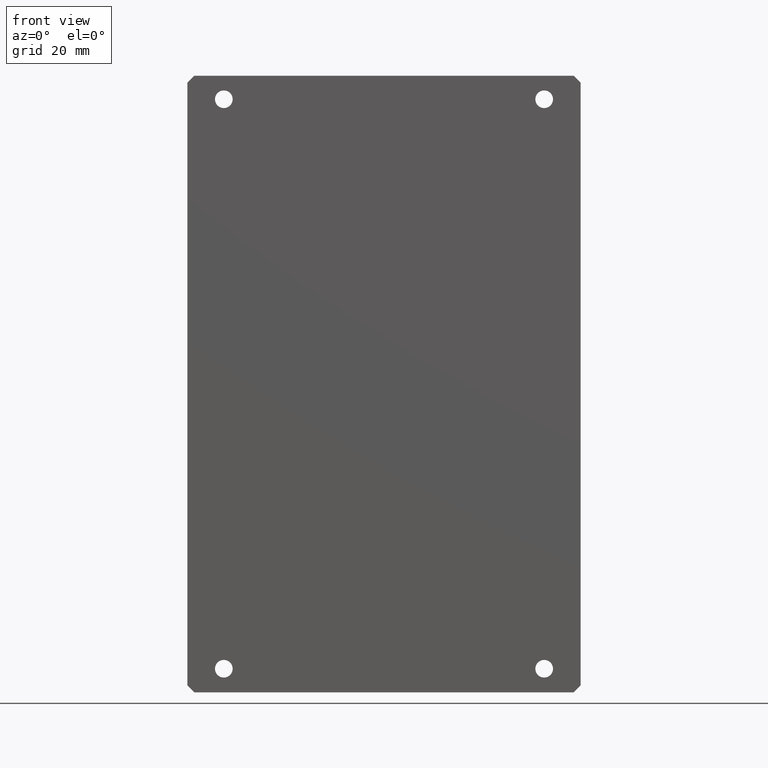
[diagram: clean part render]
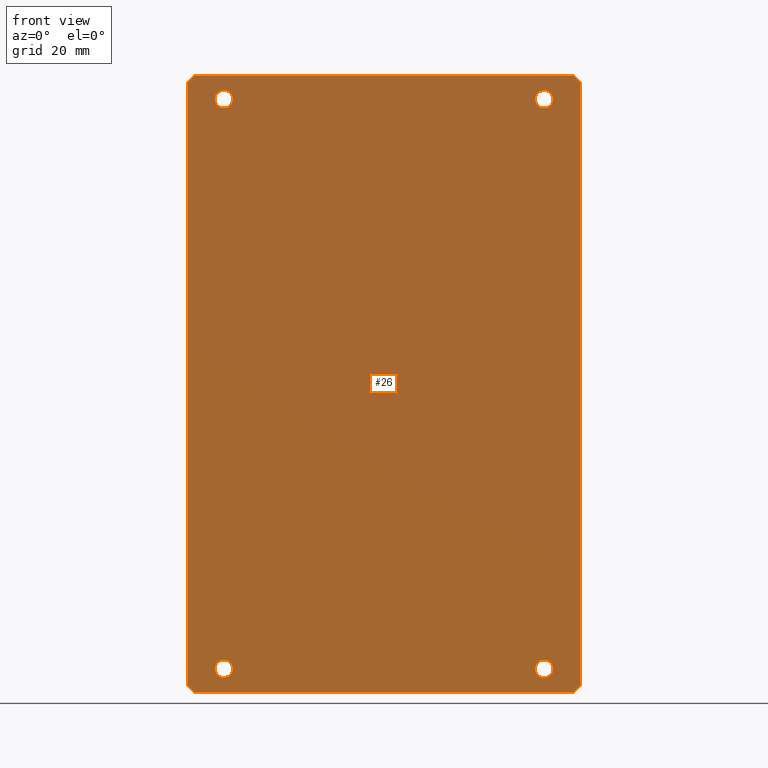
[diagram: same view with one face highlighted and labeled with its STEP entity id]
A machine part, front view. The second image highlights one B-rep face of the part: STEP entity #26.
In plain terms, the highlighted planar face has unit normal (0, -1, 0).
Its self-contained STEP definition (entity closure, byte-faithful):
#1 = VERTEX_POINT ( 'NONE', #275 ) ;
#3 = EDGE_CURVE ( 'NONE', #1, #5, #336, .T. ) ;
#5 = VERTEX_POINT ( 'NONE', #331 ) ;
#7 = VERTEX_POINT ( 'NONE', #326 ) ;
#8 = VERTEX_POINT ( 'NONE', #325 ) ;
#9 = ORIENTED_EDGE ( 'NONE', *, *, #27, .F. ) ;
#10 = VERTEX_POINT ( 'NONE', #324 ) ;
#26 = ADVANCED_FACE ( 'NONE', ( #130, #129, #128, #127, #126 ), #125, .T. ) ;
#27 = EDGE_CURVE ( 'NONE', #7, #10, #120, .T. ) ;
#28 = ORIENTED_EDGE ( 'NONE', *, *, #29, .F. ) ;
#29 = EDGE_CURVE ( 'NONE', #30, #7, #116, .T. ) ;
#30 = VERTEX_POINT ( 'NONE', #112 ) ;
#31 = VERTEX_POINT ( 'NONE', #111 ) ;
#45 = VERTEX_POINT ( 'NONE', #73 ) ;
#47 = EDGE_CURVE ( 'NONE', #48, #45, #72, .T. ) ;
#48 = VERTEX_POINT ( 'NONE', #67 ) ;
#57 = VERTEX_POINT ( 'NONE', #462 ) ;
#59 = EDGE_CURVE ( 'NONE', #60, #57, #461, .T. ) ;
#60 = VERTEX_POINT ( 'NONE', #362 ) ;
#67 = CARTESIAN_POINT ( 'NONE',  ( 45.20000000000001000, 0.0000000000000000000, 77.84999999999959600 ) ) ;
#68 = DIRECTION ( 'NONE',  ( 0.0000000000000000000, 0.0000000000000000000, 1.000000000000000000 ) ) ;
#69 = DIRECTION ( 'NONE',  ( 0.0000000000000000000, 1.000000000000000000, 0.0000000000000000000 ) ) ;
#70 = CARTESIAN_POINT ( 'NONE',  ( 45.20000000000001000, 0.0000000000000000000, 80.34999999999961100 ) ) ;
#71 = AXIS2_PLACEMENT_3D ( 'NONE', #70, #69, #68 ) ;
#72 = CIRCLE ( 'NONE', #71, 2.500000000000016000 ) ;
#73 = CARTESIAN_POINT ( 'NONE',  ( 45.20000000000001000, 0.0000000000000000000, 82.84999999999963900 ) ) ;
#111 = CARTESIAN_POINT ( 'NONE',  ( 55.50000000000000000, 0.0000000000000000000, 84.99999999999963100 ) ) ;
#112 = CARTESIAN_POINT ( 'NONE',  ( 55.49999999999940300, 0.0000000000000000000, -85.00000000000038400 ) ) ;
#113 = DIRECTION ( 'NONE',  ( -0.7071067811865549000, 0.0000000000000000000, -0.7071067811865401300 ) ) ;
#114 = VECTOR ( 'NONE', #113, 1000.000000000000000 ) ;
#115 = CARTESIAN_POINT ( 'NONE',  ( 55.49999999999940300, 0.0000000000000000000, -85.00000000000038400 ) ) ;
#116 = LINE ( 'NONE', #115, #114 ) ;
#117 = DIRECTION ( 'NONE',  ( -1.000000000000000000, 0.0000000000000000000, 3.372172738347457500E-015 ) ) ;
#118 = VECTOR ( 'NONE', #117, 1000.000000000000000 ) ;
#119 = CARTESIAN_POINT ( 'NONE',  ( 53.49999999999938900, 0.0000000000000000000, -87.00000000000035500 ) ) ;
#120 = LINE ( 'NONE', #119, #118 ) ;
#121 = DIRECTION ( 'NONE',  ( 0.0000000000000000000, -0.0000000000000000000, -1.000000000000000000 ) ) ;
#122 = DIRECTION ( 'NONE',  ( 0.0000000000000000000, -1.000000000000000000, 0.0000000000000000000 ) ) ;
#123 = CARTESIAN_POINT ( 'NONE',  ( -140.5000000000003100, 0.0000000000000000000, 8.743006318923107800E-013 ) ) ;
#124 = AXIS2_PLACEMENT_3D ( 'NONE', #123, #122, #121 ) ;
#125 = PLANE ( 'NONE',  #124 ) ;
#126 = FACE_BOUND ( 'NONE', #201, .T. ) ;
#127 = FACE_BOUND ( 'NONE', #166, .T. ) ;
#128 = FACE_OUTER_BOUND ( 'NONE', #163, .T. ) ;
#129 = FACE_BOUND ( 'NONE', #159, .T. ) ;
#130 = FACE_BOUND ( 'NONE', #155, .T. ) ;
#155 = EDGE_LOOP ( 'NONE', ( #156, #157 ) ) ;
#156 = ORIENTED_EDGE ( 'NONE', *, *, #47, .T. ) ;
#157 = ORIENTED_EDGE ( 'NONE', *, *, #158, .T. ) ;
#158 = EDGE_CURVE ( 'NONE', #45, #48, #350, .T. ) ;
#159 = EDGE_LOOP ( 'NONE', ( #160, #161 ) ) ;
#160 = ORIENTED_EDGE ( 'NONE', *, *, #3, .T. ) ;
#161 = ORIENTED_EDGE ( 'NONE', *, *, #162, .T. ) ;
#162 = EDGE_CURVE ( 'NONE', #5, #1, #345, .T. ) ;
#163 = EDGE_LOOP ( 'NONE', ( #164, #9, #28, #224, #226, #229, #232, #235 ) ) ;
#164 = ORIENTED_EDGE ( 'NONE', *, *, #165, .F. ) ;
#165 = EDGE_CURVE ( 'NONE', #10, #8, #487, .T. ) ;
#166 = EDGE_LOOP ( 'NONE', ( #198, #199 ) ) ;
#169 = VERTEX_POINT ( 'NONE', #479 ) ;
#171 = EDGE_CURVE ( 'NONE', #172, #169, #478, .T. ) ;
#172 = VERTEX_POINT ( 'NONE', #473 ) ;
#198 = ORIENTED_EDGE ( 'NONE', *, *, #171, .T. ) ;
#199 = ORIENTED_EDGE ( 'NONE', *, *, #200, .T. ) ;
#200 = EDGE_CURVE ( 'NONE', #169, #172, #383, .T. ) ;
#201 = EDGE_LOOP ( 'NONE', ( #202, #203 ) ) ;
#202 = ORIENTED_EDGE ( 'NONE', *, *, #59, .T. ) ;
#203 = ORIENTED_EDGE ( 'NONE', *, *, #204, .T. ) ;
#204 = EDGE_CURVE ( 'NONE', #57, #60, #378, .T. ) ;
#224 = ORIENTED_EDGE ( 'NONE', *, *, #225, .F. ) ;
#225 = EDGE_CURVE ( 'NONE', #31, #30, #401, .T. ) ;
#226 = ORIENTED_EDGE ( 'NONE', *, *, #227, .F. ) ;
#227 = EDGE_CURVE ( 'NONE', #228, #31, #397, .T. ) ;
#228 = VERTEX_POINT ( 'NONE', #583 ) ;
#229 = ORIENTED_EDGE ( 'NONE', *, *, #230, .F. ) ;
#230 = EDGE_CURVE ( 'NONE', #231, #228, #582, .T. ) ;
#231 = VERTEX_POINT ( 'NONE', #578 ) ;
#232 = ORIENTED_EDGE ( 'NONE', *, *, #233, .F. ) ;
#233 = EDGE_CURVE ( 'NONE', #234, #231, #577, .T. ) ;
#234 = VERTEX_POINT ( 'NONE', #573 ) ;
#235 = ORIENTED_EDGE ( 'NONE', *, *, #236, .F. ) ;
#236 = EDGE_CURVE ( 'NONE', #8, #234, #572, .T. ) ;
#275 = CARTESIAN_POINT ( 'NONE',  ( -45.20000000000000300, 0.0000000000000000000, -82.84999999999998000 ) ) ;
#324 = CARTESIAN_POINT ( 'NONE',  ( -53.50000000000000000, 0.0000000000000000000, -87.00000000000000000 ) ) ;
#325 = CARTESIAN_POINT ( 'NONE',  ( -55.50000000000000000, 0.0000000000000000000, -84.99999999999997200 ) ) ;
#326 = CARTESIAN_POINT ( 'NONE',  ( 53.49999999999938900, 0.0000000000000000000, -87.00000000000035500 ) ) ;
#331 = CARTESIAN_POINT ( 'NONE',  ( -45.20000000000000300, 0.0000000000000000000, -77.84999999999998000 ) ) ;
#332 = DIRECTION ( 'NONE',  ( 0.0000000000000000000, 0.0000000000000000000, 1.000000000000000000 ) ) ;
#333 = DIRECTION ( 'NONE',  ( 0.0000000000000000000, 1.000000000000000000, 0.0000000000000000000 ) ) ;
#334 = CARTESIAN_POINT ( 'NONE',  ( -45.20000000000000300, 0.0000000000000000000, -80.34999999999998000 ) ) ;
#335 = AXIS2_PLACEMENT_3D ( 'NONE', #334, #333, #332 ) ;
#336 = CIRCLE ( 'NONE', #335, 2.500000000000002200 ) ;
#344 = CARTESIAN_POINT ( 'NONE',  ( -45.20000000000000300, 0.0000000000000000000, -80.34999999999998000 ) ) ;
#345 = CIRCLE ( 'NONE', #490, 2.500000000000002200 ) ;
#346 = DIRECTION ( 'NONE',  ( 0.0000000000000000000, 0.0000000000000000000, 1.000000000000000000 ) ) ;
#347 = DIRECTION ( 'NONE',  ( 0.0000000000000000000, 1.000000000000000000, 0.0000000000000000000 ) ) ;
#348 = CARTESIAN_POINT ( 'NONE',  ( 45.20000000000001000, 0.0000000000000000000, 80.34999999999961100 ) ) ;
#349 = AXIS2_PLACEMENT_3D ( 'NONE', #348, #347, #346 ) ;
#350 = CIRCLE ( 'NONE', #349, 2.500000000000016000 ) ;
#362 = CARTESIAN_POINT ( 'NONE',  ( -45.19999999999944900, 0.0000000000000000000, 77.84999999999992300 ) ) ;
#363 = DIRECTION ( 'NONE',  ( 0.0000000000000000000, 0.0000000000000000000, -1.000000000000000000 ) ) ;
#374 = DIRECTION ( 'NONE',  ( 0.0000000000000000000, 0.0000000000000000000, -1.000000000000000000 ) ) ;
#375 = DIRECTION ( 'NONE',  ( -0.0000000000000000000, 1.000000000000000000, -0.0000000000000000000 ) ) ;
#376 = CARTESIAN_POINT ( 'NONE',  ( -45.19999999999944900, 0.0000000000000000000, 80.34999999999992300 ) ) ;
#377 = AXIS2_PLACEMENT_3D ( 'NONE', #376, #375, #374 ) ;
#378 = CIRCLE ( 'NONE', #377, 2.500000000000002200 ) ;
#379 = DIRECTION ( 'NONE',  ( 0.0000000000000000000, 0.0000000000000000000, -1.000000000000000000 ) ) ;
#380 = DIRECTION ( 'NONE',  ( -0.0000000000000000000, 1.000000000000000000, -0.0000000000000000000 ) ) ;
#381 = CARTESIAN_POINT ( 'NONE',  ( 45.19999999999944900, 0.0000000000000000000, -80.35000000000027900 ) ) ;
#382 = AXIS2_PLACEMENT_3D ( 'NONE', #381, #380, #379 ) ;
#383 = CIRCLE ( 'NONE', #382, 2.500000000000016000 ) ;
#394 = DIRECTION ( 'NONE',  ( 0.7071067811865474600, -0.0000000000000000000, -0.7071067811865474600 ) ) ;
#395 = VECTOR ( 'NONE', #394, 1000.000000000000100 ) ;
#396 = CARTESIAN_POINT ( 'NONE',  ( 55.50000000000000000, 0.0000000000000000000, 84.99999999999963100 ) ) ;
#397 = LINE ( 'NONE', #396, #395 ) ;
#398 = DIRECTION ( 'NONE',  ( -3.510263974917773900E-015, 0.0000000000000000000, -1.000000000000000000 ) ) ;
#399 = VECTOR ( 'NONE', #398, 1000.000000000000000 ) ;
#400 = CARTESIAN_POINT ( 'NONE',  ( 55.50000000000000000, 0.0000000000000000000, 84.99999999999963100 ) ) ;
#401 = LINE ( 'NONE', #400, #399 ) ;
#458 = DIRECTION ( 'NONE',  ( -0.0000000000000000000, 1.000000000000000000, -0.0000000000000000000 ) ) ;
#459 = CARTESIAN_POINT ( 'NONE',  ( -45.19999999999944900, 0.0000000000000000000, 80.34999999999992300 ) ) ;
#460 = AXIS2_PLACEMENT_3D ( 'NONE', #459, #458, #363 ) ;
#461 = CIRCLE ( 'NONE', #460, 2.500000000000002200 ) ;
#462 = CARTESIAN_POINT ( 'NONE',  ( -45.19999999999944900, 0.0000000000000000000, 82.84999999999992300 ) ) ;
#473 = CARTESIAN_POINT ( 'NONE',  ( 45.19999999999944900, 0.0000000000000000000, -82.85000000000029300 ) ) ;
#474 = DIRECTION ( 'NONE',  ( 0.0000000000000000000, 0.0000000000000000000, -1.000000000000000000 ) ) ;
#475 = DIRECTION ( 'NONE',  ( -0.0000000000000000000, 1.000000000000000000, -0.0000000000000000000 ) ) ;
#476 = CARTESIAN_POINT ( 'NONE',  ( 45.19999999999944900, 0.0000000000000000000, -80.35000000000027900 ) ) ;
#477 = AXIS2_PLACEMENT_3D ( 'NONE', #476, #475, #474 ) ;
#478 = CIRCLE ( 'NONE', #477, 2.500000000000016000 ) ;
#479 = CARTESIAN_POINT ( 'NONE',  ( 45.19999999999944900, 0.0000000000000000000, -77.85000000000026400 ) ) ;
#484 = DIRECTION ( 'NONE',  ( -0.7071067811865451300, -0.0000000000000000000, 0.7071067811865500200 ) ) ;
#485 = VECTOR ( 'NONE', #484, 1000.000000000000100 ) ;
#486 = CARTESIAN_POINT ( 'NONE',  ( -55.50000000000000000, 0.0000000000000000000, -84.99999999999997200 ) ) ;
#487 = LINE ( 'NONE', #486, #485 ) ;
#488 = DIRECTION ( 'NONE',  ( 0.0000000000000000000, 0.0000000000000000000, 1.000000000000000000 ) ) ;
#489 = DIRECTION ( 'NONE',  ( 0.0000000000000000000, 1.000000000000000000, 0.0000000000000000000 ) ) ;
#490 = AXIS2_PLACEMENT_3D ( 'NONE', #344, #489, #488 ) ;
#569 = DIRECTION ( 'NONE',  ( 3.428629928989454100E-015, -0.0000000000000000000, 1.000000000000000000 ) ) ;
#570 = VECTOR ( 'NONE', #569, 1000.000000000000000 ) ;
#571 = CARTESIAN_POINT ( 'NONE',  ( -55.49999999999941700, 0.0000000000000000000, 85.00000000000000000 ) ) ;
#572 = LINE ( 'NONE', #571, #570 ) ;
#573 = CARTESIAN_POINT ( 'NONE',  ( -55.49999999999941700, 0.0000000000000000000, 85.00000000000000000 ) ) ;
#574 = DIRECTION ( 'NONE',  ( 0.7071067811865549000, 0.0000000000000000000, 0.7071067811865402500 ) ) ;
#575 = VECTOR ( 'NONE', #574, 1000.000000000000100 ) ;
#576 = CARTESIAN_POINT ( 'NONE',  ( -55.49999999999941700, 0.0000000000000000000, 85.00000000000000000 ) ) ;
#577 = LINE ( 'NONE', #576, #575 ) ;
#578 = CARTESIAN_POINT ( 'NONE',  ( -53.49999999999938900, 0.0000000000000000000, 87.00000000000000000 ) ) ;
#579 = DIRECTION ( 'NONE',  ( 1.000000000000000000, -0.0000000000000000000, -0.0000000000000000000 ) ) ;
#580 = VECTOR ( 'NONE', #579, 1000.000000000000000 ) ;
#581 = CARTESIAN_POINT ( 'NONE',  ( 53.49999999999963800, 0.0000000000000000000, 87.00000000000000000 ) ) ;
#582 = LINE ( 'NONE', #581, #580 ) ;
#583 = CARTESIAN_POINT ( 'NONE',  ( 53.49999999999963800, 0.0000000000000000000, 87.00000000000000000 ) ) ;